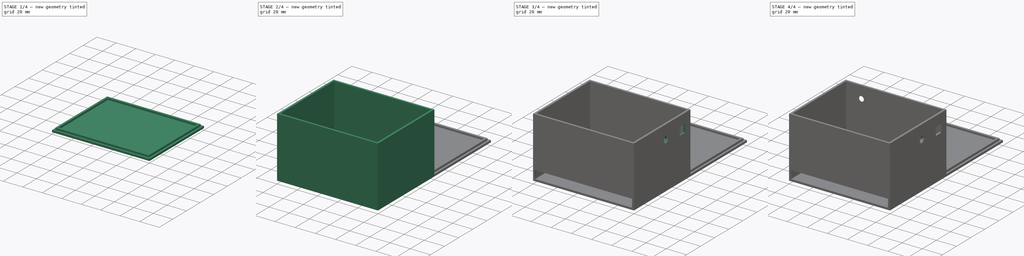
[diagram: build sequence overview — one tinted view per stage of 4, left to right]
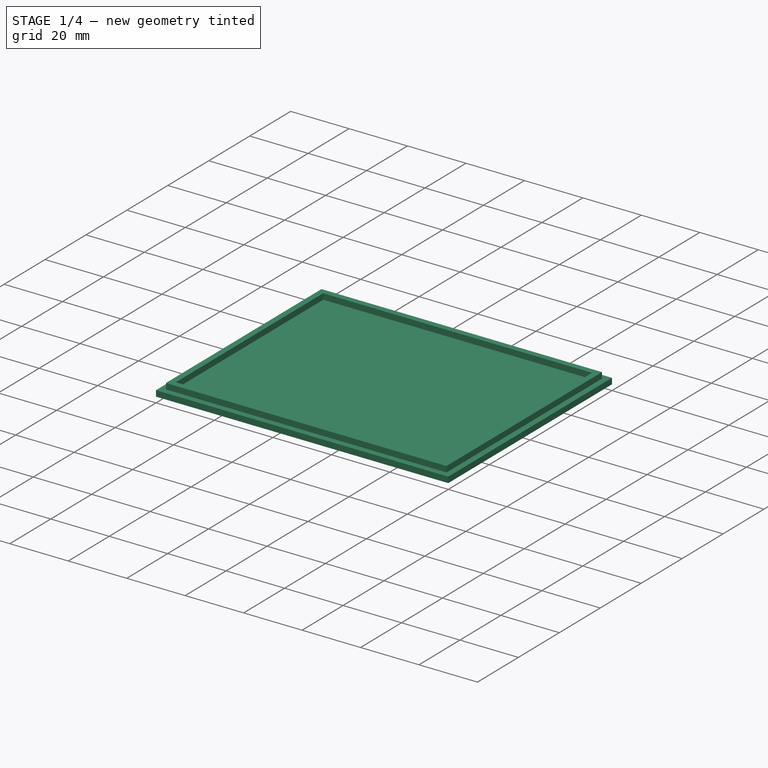
[diagram: stage 1 of 4 — iso view after this stage's code; geometry added in this stage tinted green]
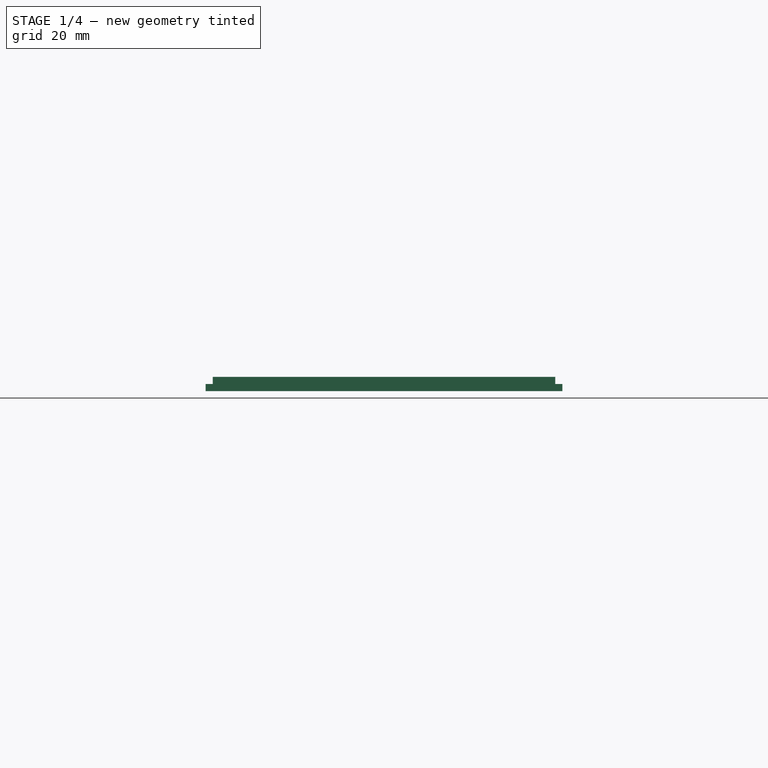
[diagram: stage 1 of 4 — front view after this stage's code; geometry added in this stage tinted green]
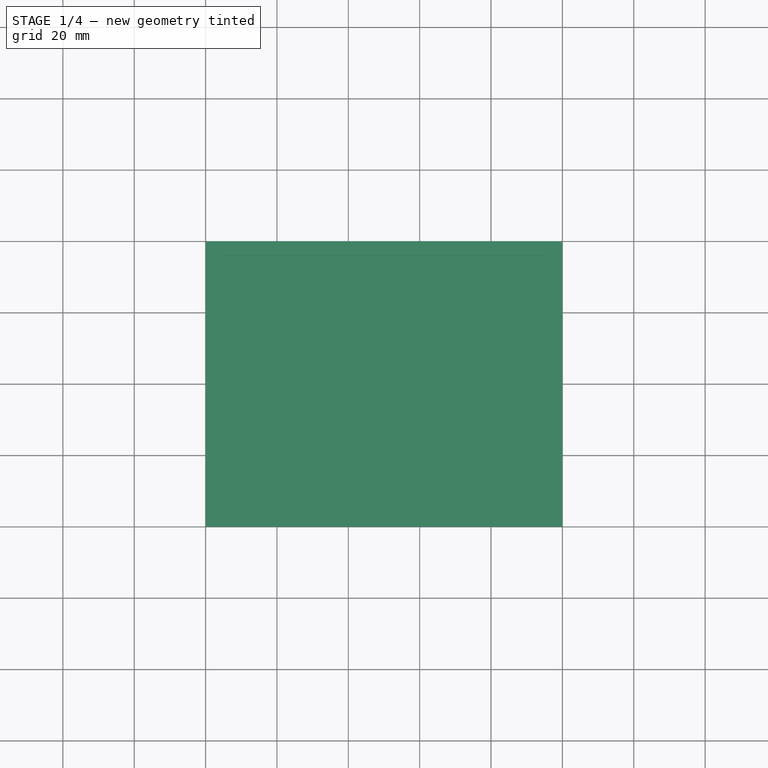
[diagram: stage 1 of 4 — top view after this stage's code; geometry added in this stage tinted green]
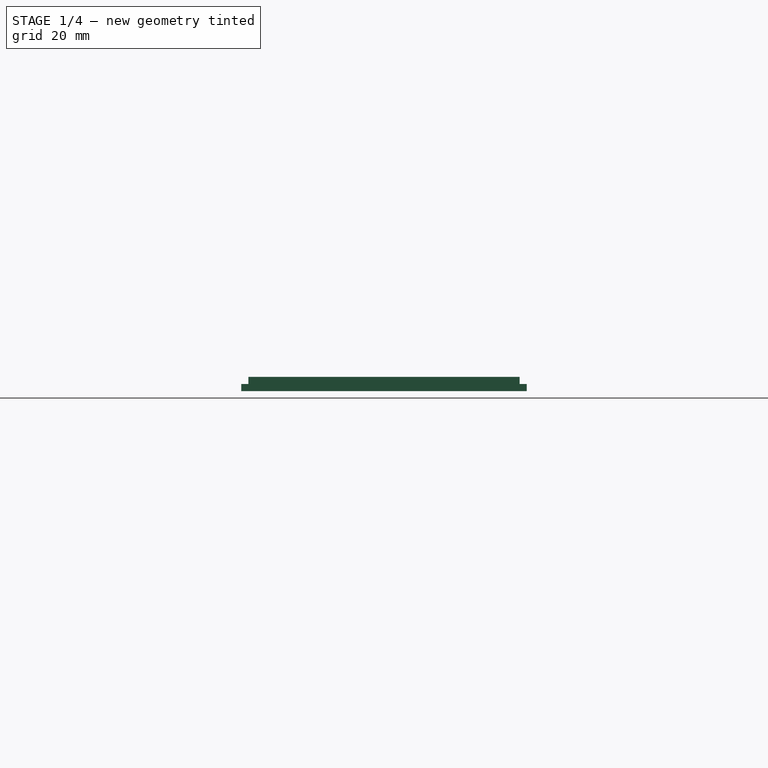
[diagram: stage 1 of 4 — right view after this stage's code; geometry added in this stage tinted green]
FCSTD DOCUMENT  (FreeCAD 1.0R39285 (Git))
Label: box
License: All rights reserved
LicenseURL: https://en.wikipedia.org/wiki/All_rights_reserved
objects: Sketcher::SketchObject×8, PartDesign::Pocket×4, PartDesign::Pad×3, PartDesign::Chamfer×2, PartDesign::Body×2, App::VarSet×1
note: 45 computed .brp shape members not serialized (recipe doc carries the construction recipe); baked Part::Feature solids carry a one-line shape summary decoded from their .brp

FEATURE [PartDesign::Body] Body  label="Box"
  AllowCompound = false
  Group = -> [Sketch,Pad,Sketch001,Pocket,Sketch004,Pocket002,Chamfer,Sketch005,Sketch006,Pocket003,Sketch007,Pocket004,Chamfer001]
  Origin = -> Origin
  Placement = pos=(0,166,0) rot=(0,0,1;0rad)
  Tip = -> Chamfer001
FEATURE [Sketcher::SketchObject] Sketch008
  ArcFitTolerance = 1e-06
  AttachmentSupport = -> [XY_Plane001]
  FullyConstrained = true
  MakeInternals = false
  MapMode = 5
  expr: Constraints[10] = <<VarSet>>.width
  expr: Constraints[11] = <<VarSet>>.length
  sketch-geometry (4):
    g0: LineSegment StartX=0 StartY=80 StartZ=0 EndX=0 EndY=0 EndZ=0
    g1: LineSegment StartX=0 StartY=0 StartZ=0 EndX=100 EndY=0 EndZ=0
    g2: LineSegment StartX=100 StartY=0 StartZ=0 EndX=100 EndY=80 EndZ=0
    g3: LineSegment StartX=100 StartY=80 StartZ=0 EndX=0 EndY=80 EndZ=0
  constraints (12):
    c: Coincident(g0,g1)
    c: Coincident(g1,g2)
    c: Coincident(g2,g3)
    c: Coincident(g3,g0)
    c: Vertical(g0)
    c: Vertical(g2)
    c: Horizontal(g1)
    c: Horizontal(g3)
    c: Horizontal(g0,g-1)
    c: Vertical(g-1,g0)
    c: DistanceY(g0,g0) = 80
    c: DistanceX(g0,g1) = 100
FEATURE [PartDesign::Pad] Pad001
  Direction = (0,0,1)
  Length = 2
  Length2 = 10
  Profile = -> Sketch008
  ReferenceAxis = -> Sketch008 [N_Axis]
  Refine = true
  Suppressed = false
  Type = 0
  expr: Length = <<VarSet>>.wall_thickness
FEATURE [Sketcher::SketchObject] Sketch009
  ArcFitTolerance = 1e-06
  AttachmentSupport = -> [Pad001]
  FullyConstrained = true
  MakeInternals = false
  MapMode = 5
  Placement = pos=(0,0,2) rot=(0,0,1;0rad)
  expr: Constraints[10] = <<VarSet>>.length - <<VarSet>>.wall_thickness
  expr: Constraints[11] = <<VarSet>>.width - <<VarSet>>.wall_thickness
  expr: Constraints[20] = <<VarSet>>.wall_thickness * 2
  expr: Constraints[21] = <<VarSet>>.wall_thickness * 2
  expr: Constraints[22] = <<VarSet>>.length - <<VarSet>>.wall_thickness * 2
  expr: Constraints[23] = <<VarSet>>.width - <<VarSet>>.wall_thickness * 2
  expr: Constraints[8] = <<VarSet>>.wall_thickness
  expr: Constraints[9] = <<VarSet>>.wall_thickness
  sketch-geometry (8):
    g0: LineSegment StartX=2 StartY=78 StartZ=0 EndX=2 EndY=2 EndZ=0
    g1: LineSegment StartX=2 StartY=2 StartZ=0 EndX=98 EndY=2 EndZ=0
    g2: LineSegment StartX=98 StartY=2 StartZ=0 EndX=98 EndY=78 EndZ=0
    g3: LineSegment StartX=98 StartY=78 StartZ=0 EndX=2 EndY=78 EndZ=0
    g4: LineSegment StartX=4 StartY=76 StartZ=0 EndX=4 EndY=4 EndZ=0
    g5: LineSegment StartX=4 StartY=4 StartZ=0 EndX=96 EndY=4 EndZ=0
    g6: LineSegment StartX=96 StartY=4 StartZ=0 EndX=96 EndY=76 EndZ=0
    g7: LineSegment StartX=96 StartY=76 StartZ=0 EndX=4 EndY=76 EndZ=0
  constraints (24):
    c: Coincident(g0,g1)
    c: Coincident(g1,g2)
    c: Coincident(g2,g3)
    c: Coincident(g3,g0)
    c: Vertical(g0)
    c: Vertical(g2)
    c: Horizontal(g1)
    c: Horizontal(g3)
    c: DistanceY(g-1,g0) = 2
    c: DistanceX(g-1,g0) = 2
    c: DistanceX(g-1,g1) = 98
    c: DistanceY(g-1,g0) = 78
    c: Coincident(g4,g5)
    c: Coincident(g5,g6)
    c: Coincident(g6,g7)
    c: Coincident(g7,g4)
    c: Vertical(g4)
    c: Vertical(g6)
    c: Horizontal(g5)
    c: Horizontal(g7)
    c: DistanceY(g-1,g4) = 4
    c: DistanceX(g-1,g4) = 4
    c: DistanceX(g-1,g5) = 96
    c: DistanceY(g-1,g4) = 76
FEATURE [PartDesign::Pad] Pad002
  BaseFeature = -> Pad001
  Direction = (0,0,1)
  Length = 2
  Length2 = 10
  Profile = -> Sketch009
  ReferenceAxis = -> Sketch009 [N_Axis]
  Refine = true
  Suppressed = false
  Type = 0
  expr: Length = <<VarSet>>.wall_thickness
FEATURE [PartDesign::Body] Body001  label="Body"
  AllowCompound = false
  Group = -> [Sketch008,Pad001,Sketch009,Pad002]
  Origin = -> Origin001
  Tip = -> Pad002
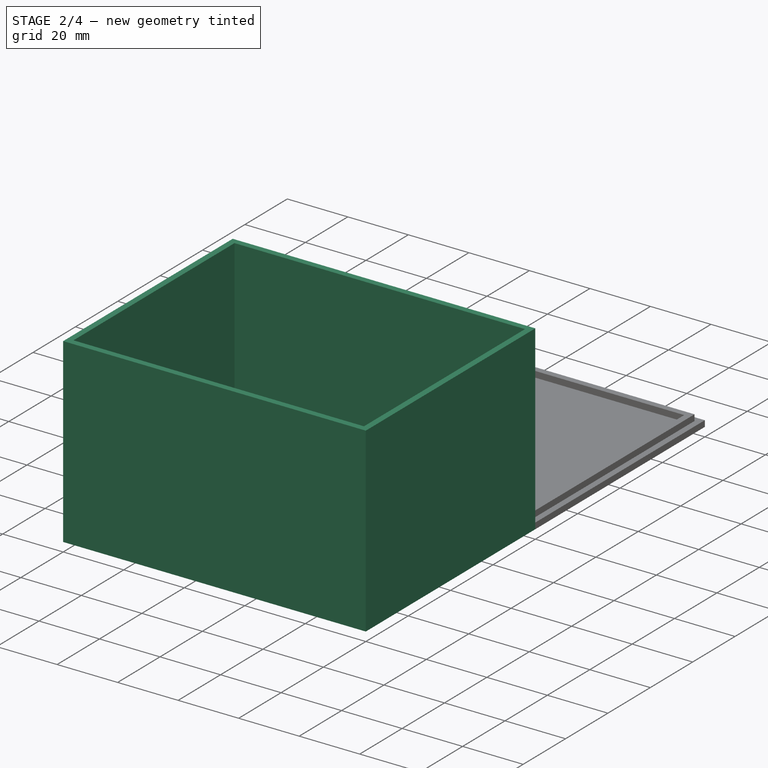
[diagram: stage 2 of 4 — iso view after this stage's code; geometry added in this stage tinted green]
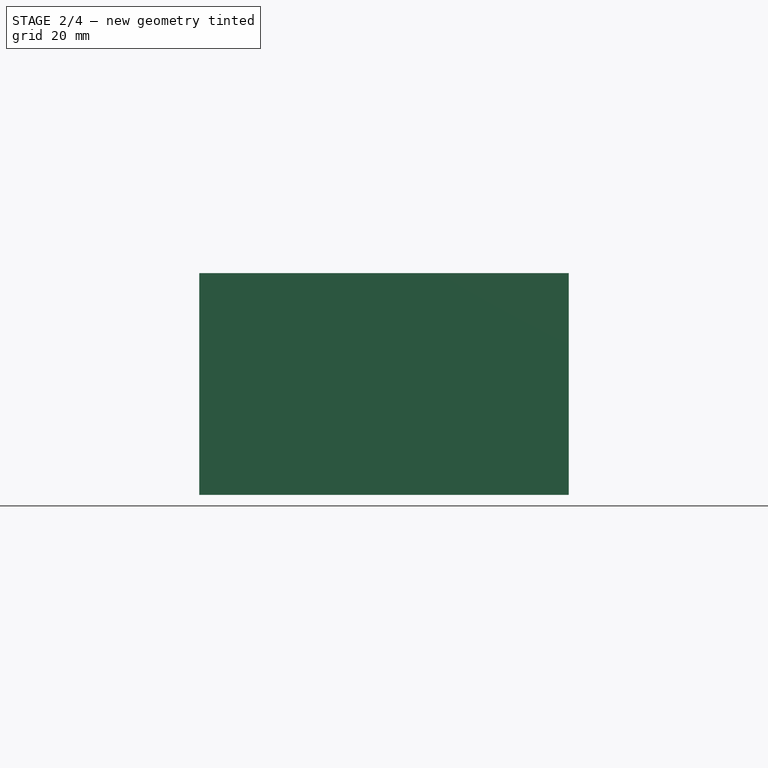
[diagram: stage 2 of 4 — front view after this stage's code; geometry added in this stage tinted green]
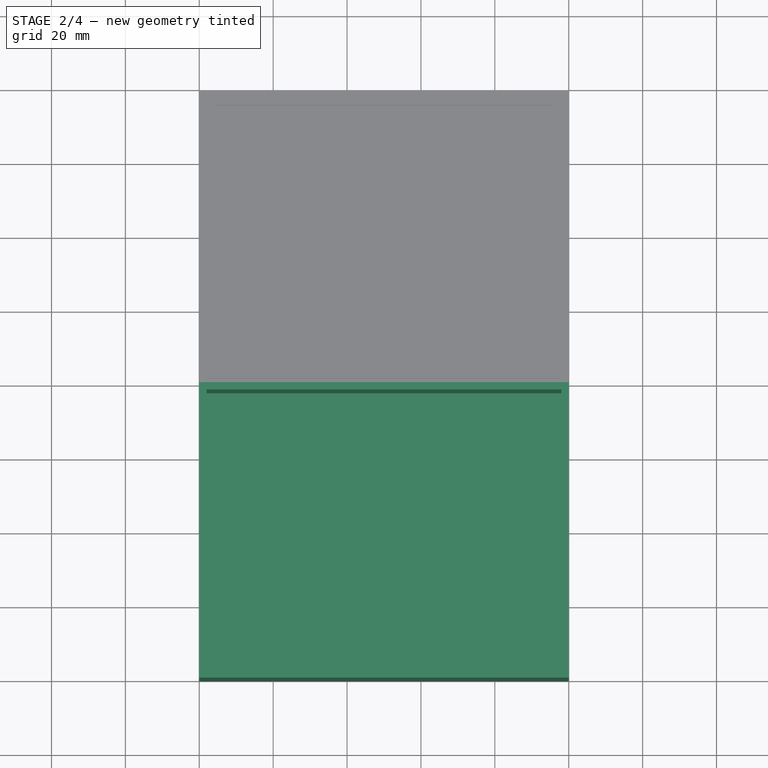
[diagram: stage 2 of 4 — top view after this stage's code; geometry added in this stage tinted green]
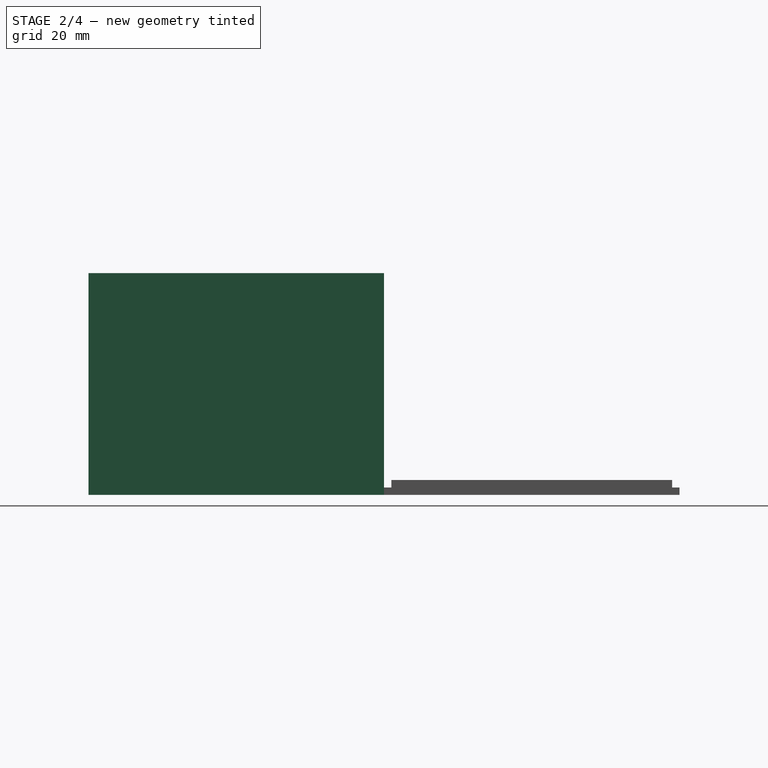
[diagram: stage 2 of 4 — right view after this stage's code; geometry added in this stage tinted green]
FEATURE [App::VarSet] VarSet
  air_sensor_box = 8
  height = 60
  length = 100
  wall_thickness = 2
  width = 80
FEATURE [Sketcher::SketchObject] Sketch
  ArcFitTolerance = 1e-06
  AttachmentSupport = -> [XY_Plane]
  FullyConstrained = true
  MakeInternals = false
  MapMode = 5
  expr: Constraints[10] = <<VarSet>>.length
  expr: Constraints[11] = <<VarSet>>.width
  sketch-geometry (4):
    g0: LineSegment StartX=0 StartY=0 StartZ=0 EndX=0 EndY=-80 EndZ=0
    g1: LineSegment StartX=0 StartY=-80 StartZ=0 EndX=100 EndY=-80 EndZ=0
    g2: LineSegment StartX=100 StartY=-80 StartZ=0 EndX=100 EndY=0 EndZ=0
    g3: LineSegment StartX=100 StartY=0 StartZ=0 EndX=0 EndY=0 EndZ=0
  constraints (12):
    c: Coincident(g0,g1)
    c: Coincident(g1,g2)
    c: Coincident(g2,g3)
    c: Coincident(g3,g0)
    c: Vertical(g0)
    c: Vertical(g2)
    c: Horizontal(g1)
    c: Horizontal(g3)
    c: Horizontal(g0,g-1)
    c: Vertical(g0,g-1)
    c: DistanceX(g0,g2) = 100
    c: DistanceY(g0,g0) = 80
FEATURE [PartDesign::Pad] Pad
  Direction = (0,0,1)
  Length = 60
  Length2 = 10
  Profile = -> Sketch
  ReferenceAxis = -> Sketch [N_Axis]
  Refine = true
  Suppressed = false
  Type = 0
  expr: Length = <<VarSet>>.height
FEATURE [Sketcher::SketchObject] Sketch001
  ArcFitTolerance = 1e-06
  AttachmentSupport = -> [Pad]
  FullyConstrained = true
  MakeInternals = false
  MapMode = 5
  Placement = pos=(0,0,60) rot=(0,0,1;0rad)
  expr: Constraints[10] = <<VarSet>>.length - <<VarSet>>.wall_thickness
  expr: Constraints[11] = <<VarSet>>.width - <<VarSet>>.wall_thickness
  expr: Constraints[8] = VarSet.wall_thickness
  expr: Constraints[9] = <<VarSet>>.wall_thickness
  sketch-geometry (4):
    g0: LineSegment StartX=2 StartY=-2 StartZ=0 EndX=2 EndY=-78 EndZ=0
    g1: LineSegment StartX=2 StartY=-78 StartZ=0 EndX=98 EndY=-78 EndZ=0
    g2: LineSegment StartX=98 StartY=-78 StartZ=0 EndX=98 EndY=-2 EndZ=0
    g3: LineSegment StartX=98 StartY=-2 StartZ=0 EndX=2 EndY=-2 EndZ=0
  constraints (12):
    c: Coincident(g0,g1)
    c: Coincident(g1,g2)
    c: Coincident(g2,g3)
    c: Coincident(g3,g0)
    c: Vertical(g0)
    c: Vertical(g2)
    c: Horizontal(g1)
    c: Horizontal(g3)
    c: DistanceX(g-1,g0) = 2
    c: DistanceY(g0,g-1) = 2
    c: DistanceX(g-1,g1) = 98
    c: DistanceY(g1,g-1) = 78
FEATURE [PartDesign::Pocket] Pocket
  BaseFeature = -> Pad
  Direction = (0,0,-1)
  Length = 58
  Length2 = 5
  Profile = -> Sketch001
  ReferenceAxis = -> Sketch001 [N_Axis]
  Refine = true
  Suppressed = false
  Type = 0
  expr: Length = <<VarSet>>.height - <<VarSet>>.wall_thickness
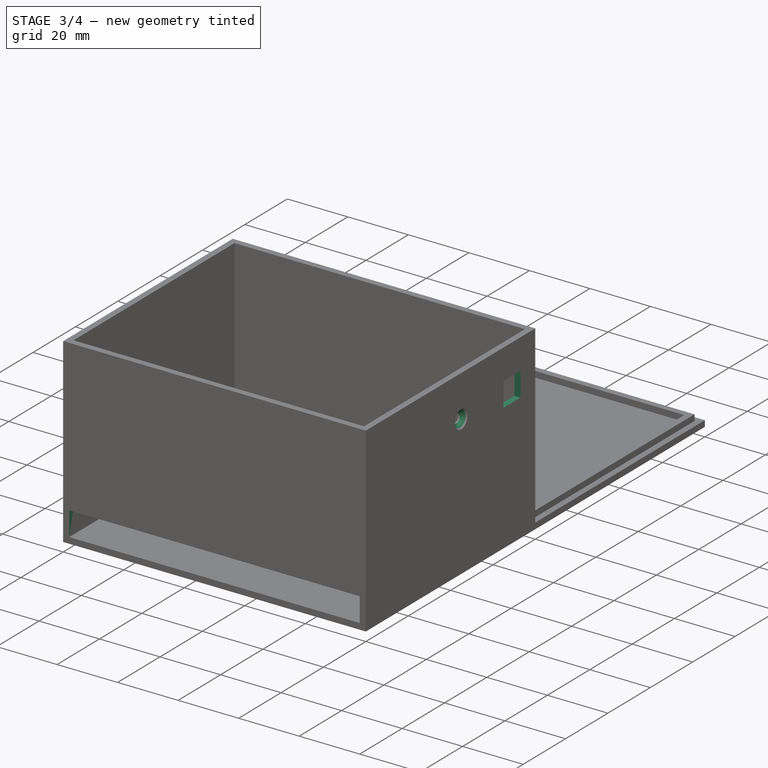
[diagram: stage 3 of 4 — iso view after this stage's code; geometry added in this stage tinted green]
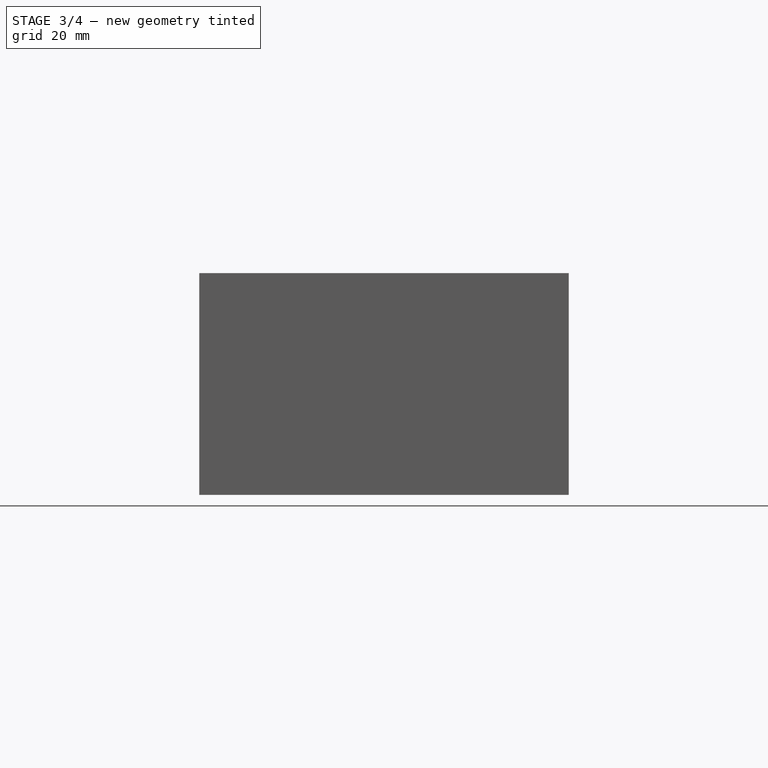
[diagram: stage 3 of 4 — front view after this stage's code; geometry added in this stage tinted green]
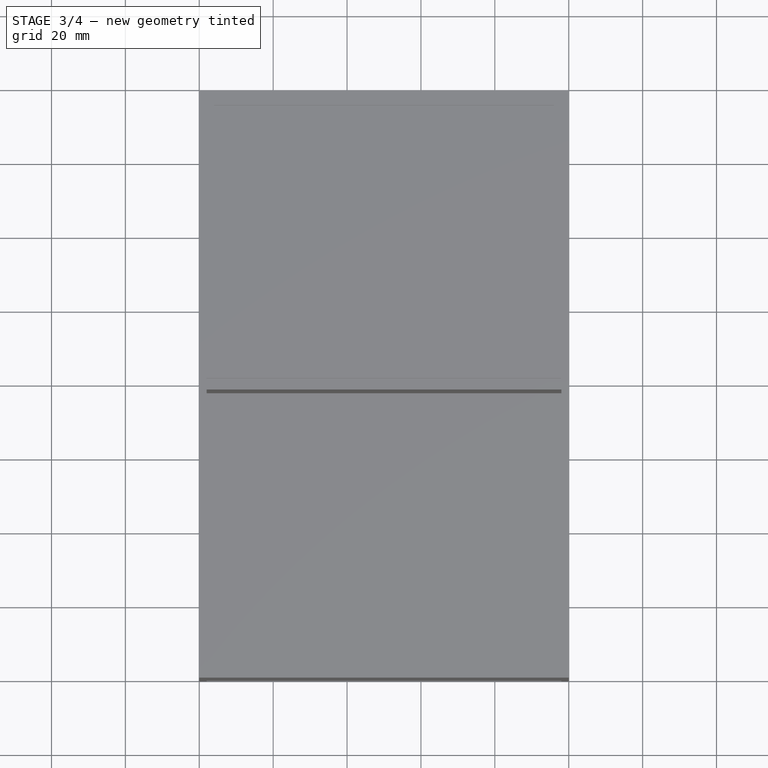
[diagram: stage 3 of 4 — top view after this stage's code; geometry added in this stage tinted green]
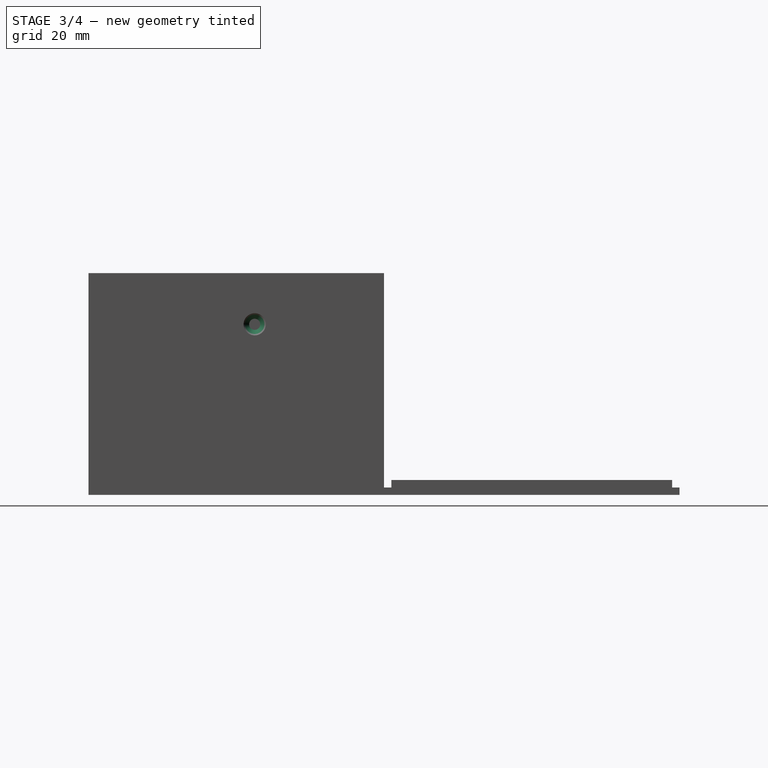
[diagram: stage 3 of 4 — right view after this stage's code; geometry added in this stage tinted green]
FEATURE [Sketcher::SketchObject] Sketch004
  ArcFitTolerance = 1e-06
  FullyConstrained = false
  MakeInternals = false
  MapMode = 5
  Placement = pos=(98,0,0) rot=(0.57735,-0.57735,-0.57735;2.0944rad)
  expr: Constraints[10] = <<VarSet>>.wall_thickness + 5 mm
  expr: Constraints[11] = <<VarSet>>.height - 10 mm - <<VarSet>>.air_sensor_box
  expr: Constraints[8] = VarSet.air_sensor_box
  expr: Constraints[9] = <<VarSet>>.air_sensor_box
  sketch-geometry (5):
    g0: LineSegment StartX=7 StartY=50 StartZ=0 EndX=7 EndY=42 EndZ=0
    g1: LineSegment StartX=7 StartY=42 StartZ=0 EndX=15 EndY=42 EndZ=0
    g2: LineSegment StartX=15 StartY=42 StartZ=0 EndX=15 EndY=50 EndZ=0
    g3: LineSegment StartX=15 StartY=50 StartZ=0 EndX=7 EndY=50 EndZ=0
    g4: Circle CenterX=35 CenterY=46.1654 CenterZ=0 NormalX=0 NormalY=0 NormalZ=1 AngleXU=0 Radius=1.5
  constraints (14):
    c: Coincident(g0,g1)
    c: Coincident(g1,g2)
    c: Coincident(g2,g3)
    c: Coincident(g3,g0)
    c: Vertical(g0)
    c: Vertical(g2)
    c: Horizontal(g1)
    c: Horizontal(g3)
    c: DistanceX(g0,g1) = 8
    c: DistanceY(g0,g0) = 8
    c: DistanceX(g-1,g0) = 7
    c: DistanceY(g-1,g0) = 42
    c: Diameter(g4) = 3
    c: DistanceX(g2,g4) = 20
FEATURE [PartDesign::Pocket] Pocket002
  BaseFeature = -> Pocket
  Direction = (1,0,0)
  Length = 2
  Length2 = 5
  Profile = -> Sketch004
  ReferenceAxis = -> Sketch004 [N_Axis]
  Refine = true
  Suppressed = false
  Type = 0
  expr: Length = <<VarSet>>.wall_thickness
FEATURE [PartDesign::Chamfer] Chamfer
  Angle = 45
  Base = -> Pocket002 [Edge17]
  BaseFeature = -> Pocket002
  ChamferType = 0
  FlipDirection = false
  Refine = true
  Size = 1.5
  Size2 = 1
  SupportTransform = false
  Suppressed = false
  UseAllEdges = false
  expr: Size = <<VarSet>>.wall_thickness - 0.5 mm
FEATURE [Sketcher::SketchObject] Sketch005
  ArcFitTolerance = 1e-06
  AttachmentSupport = -> [Chamfer]
  FullyConstrained = true
  MakeInternals = false
  MapMode = 5
  Placement = pos=(0,0,2) rot=(0,0,1;0rad)
  expr: Constraints[10] = <<VarSet>>.length - <<VarSet>>.wall_thickness - 26 mm
  expr: Constraints[30] = <<VarSet>>.width - <<VarSet>>.wall_thickness
  expr: Constraints[31] = <<VarSet>>.width - <<VarSet>>.wall_thickness
  expr: Constraints[32] = <<VarSet>>.width - <<VarSet>>.wall_thickness
  expr: Constraints[33] = <<VarSet>>.length - <<VarSet>>.wall_thickness - 52 mm
  sketch-geometry (12):
    g0: LineSegment StartX=72 StartY=-43 StartZ=0 EndX=46 EndY=-43 EndZ=0
    g1: LineSegment StartX=46 StartY=-43 StartZ=0 EndX=46 EndY=-78 EndZ=0
    g2: LineSegment StartX=46 StartY=-78 StartZ=0 EndX=72 EndY=-78 EndZ=0
    g3: LineSegment StartX=72 StartY=-78 StartZ=0 EndX=72 EndY=-43 EndZ=0
    g4: LineSegment StartX=98 StartY=-43 StartZ=0 EndX=72 EndY=-43 EndZ=0
    g5: LineSegment StartX=72 StartY=-43 StartZ=0 EndX=72 EndY=-78 EndZ=0
    g6: LineSegment StartX=72 StartY=-78 StartZ=0 EndX=98 EndY=-78 EndZ=0
    g7: LineSegment StartX=98 StartY=-78 StartZ=0 EndX=98 EndY=-43 EndZ=0
    g8: LineSegment StartX=14 StartY=-26 StartZ=0 EndX=14 EndY=-78 EndZ=0
    g9: LineSegment StartX=14 StartY=-78 StartZ=0 EndX=46 EndY=-78 EndZ=0
    g10: LineSegment StartX=46 StartY=-78 StartZ=0 EndX=46 EndY=-26 EndZ=0
    g11: LineSegment StartX=46 StartY=-26 StartZ=0 EndX=14 EndY=-26 EndZ=0
  constraints (36):
    c: Coincident(g0,g1)
    c: Coincident(g1,g2)
    c: Coincident(g2,g3)
    c: Coincident(g3,g0)
    c: Horizontal(g0)
    c: Horizontal(g2)
    c: Vertical(g1)
    c: Vertical(g3)
    c: DistanceX(g0,g0) = 26
    c: DistanceY(g1,g0) = 35
    c: DistanceX(g-1,g0) = 72
    c: Coincident(g4,g5)
    c: Coincident(g5,g6)
    c: Coincident(g6,g7)
    c: Coincident(g7,g4)
    c: Horizontal(g4)
    c: Horizontal(g6)
    c: Vertical(g5)
    c: Vertical(g7)
    c: DistanceX(g4,g4) = 26
    c: DistanceY(g5,g4) = 35
    c: DistanceX(g-1,g4) = 98
    c: Coincident(g8,g9)
    c: Coincident(g9,g10)
    c: Coincident(g10,g11)
    c: Coincident(g11,g8)
    c: Vertical(g8)
    c: Vertical(g10)
    c: Horizontal(g9)
    c: Horizontal(g11)
    c: DistanceY(g6,g-1) = 78
    c: DistanceY(g2,g-1) = 78
    c: DistanceY(g9,g-1) = 78
    c: DistanceX(g-1,g9) = 46
    c: DistanceY(g8,g8) = 52
    c: DistanceX(g8,g10) = 32
FEATURE [Sketcher::SketchObject] Sketch006
  ArcFitTolerance = 1e-06
  AttachmentSupport = -> [Chamfer]
  FullyConstrained = true
  MakeInternals = false
  MapMode = 5
  Placement = pos=(0,-78,0) rot=(0,0.707107,0.707107;3.14159rad)
  expr: Constraints[10] = <<VarSet>>.length - <<VarSet>>.wall_thickness * 2
  expr: Constraints[8] = <<VarSet>>.wall_thickness
  expr: Constraints[9] = <<VarSet>>.wall_thickness
  sketch-geometry (4):
    g0: LineSegment StartX=-98 StartY=10 StartZ=0 EndX=-98 EndY=2 EndZ=0
    g1: LineSegment StartX=-98 StartY=2 StartZ=0 EndX=-2 EndY=2 EndZ=0
    g2: LineSegment StartX=-2 StartY=2 StartZ=0 EndX=-2 EndY=10 EndZ=0
    g3: LineSegment StartX=-2 StartY=10 StartZ=0 EndX=-98 EndY=10 EndZ=0
  constraints (12):
    c: Coincident(g0,g1)
    c: Coincident(g1,g2)
    c: Coincident(g2,g3)
    c: Coincident(g3,g0)
    c: Vertical(g0)
    c: Vertical(g2)
    c: Horizontal(g1)
    c: Horizontal(g3)
    c: DistanceX(g1,g-1) = 2
    c: DistanceY(g-1,g1) = 2
    c: DistanceX(g0,g2) = 96
    c: DistanceY(g1,g2) = 8
FEATURE [PartDesign::Pocket] Pocket003
  BaseFeature = -> Chamfer
  Direction = (0,-1,2e-16)
  Length = 2
  Length2 = 5
  Profile = -> Sketch006
  ReferenceAxis = -> Sketch006 [N_Axis]
  Refine = true
  Suppressed = false
  Type = 0
  expr: Length = <<VarSet>>.wall_thickness
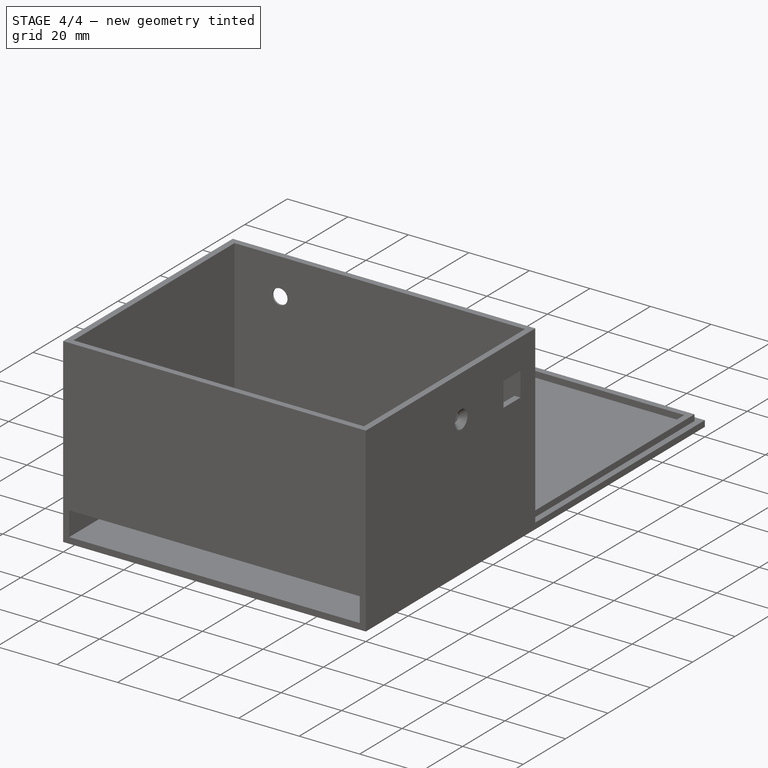
[diagram: stage 4 of 4 — iso view after this stage's code; geometry added in this stage tinted green]
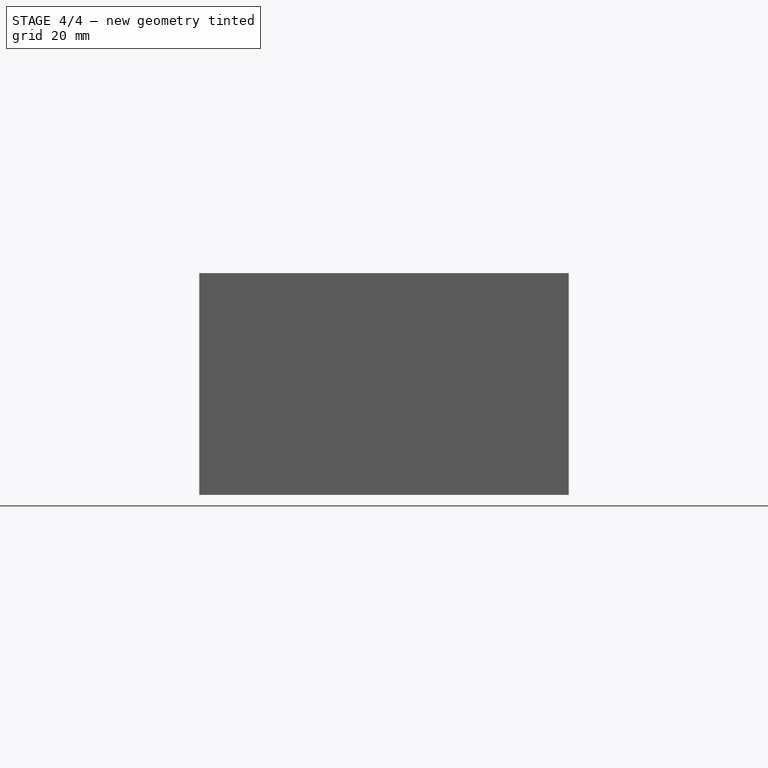
[diagram: stage 4 of 4 — front view after this stage's code; geometry added in this stage tinted green]
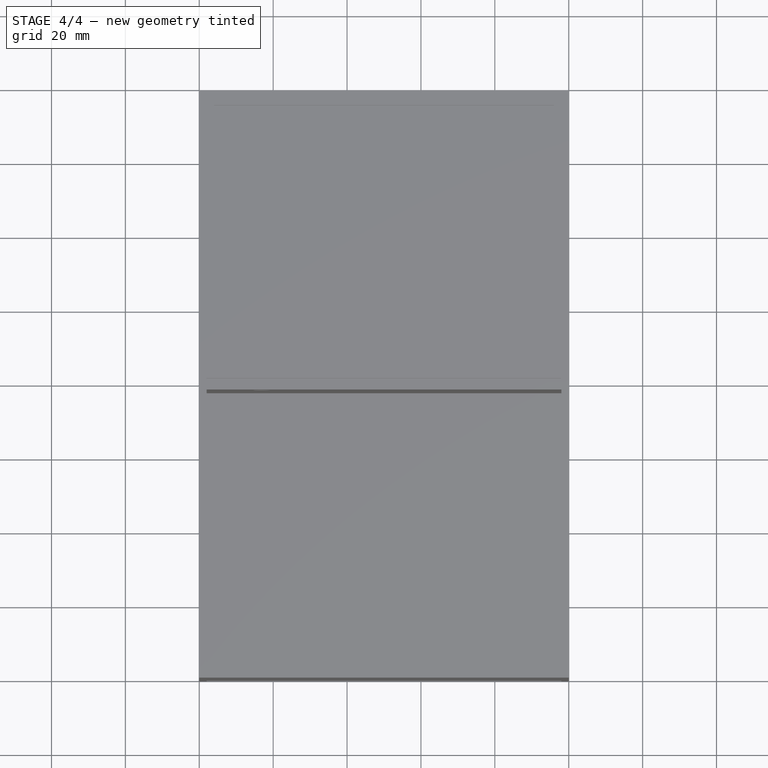
[diagram: stage 4 of 4 — top view after this stage's code; geometry added in this stage tinted green]
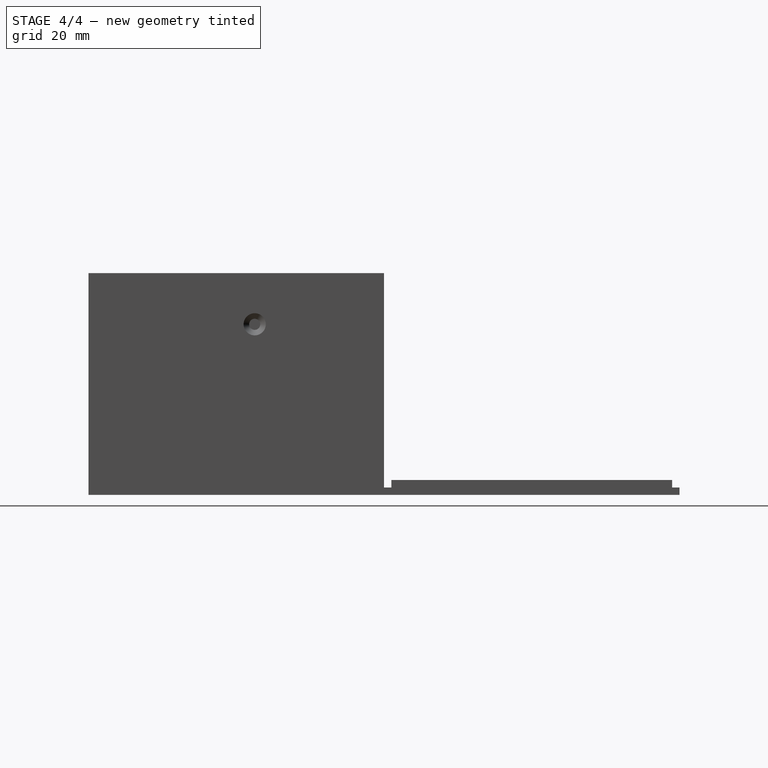
[diagram: stage 4 of 4 — right view after this stage's code; geometry added in this stage tinted green]
FEATURE [Sketcher::SketchObject] Sketch007
  ArcFitTolerance = 1e-06
  AttachmentSupport = -> [Pocket003]
  FullyConstrained = true
  MakeInternals = false
  MapMode = 5
  Placement = pos=(0,-2,0) rot=(1,0,0;1.5708rad)
  expr: Constraints[1] = <<VarSet>>.wall_thickness + 15 mm
  expr: Constraints[2] = <<VarSet>>.height - <<VarSet>>.wall_thickness - 10 mm
  sketch-geometry (1):
    g0: Circle CenterX=17 CenterY=48 CenterZ=0 NormalX=0 NormalY=0 NormalZ=1 AngleXU=0 Radius=2.5
  constraints (3):
    c: Diameter(g0) = 5
    c: DistanceX(g-1,g0) = 17
    c: DistanceY(g-1,g0) = 48
FEATURE [PartDesign::Pocket] Pocket004
  BaseFeature = -> Pocket003
  Direction = (0,1,-2e-16)
  Length = 2
  Length2 = 5
  Profile = -> Sketch007
  ReferenceAxis = -> Sketch007 [N_Axis]
  Refine = true
  Suppressed = false
  Type = 0
  expr: Length = <<VarSet>>.wall_thickness
FEATURE [PartDesign::Chamfer] Chamfer001
  Angle = 45
  Base = -> Pocket004 [Edge28]
  BaseFeature = -> Pocket004
  ChamferType = 0
  FlipDirection = false
  Refine = true
  Size = 1.5
  Size2 = 1
  SupportTransform = false
  Suppressed = false
  UseAllEdges = false
  expr: Size = <<VarSet>>.wall_thickness - 0.5 mm
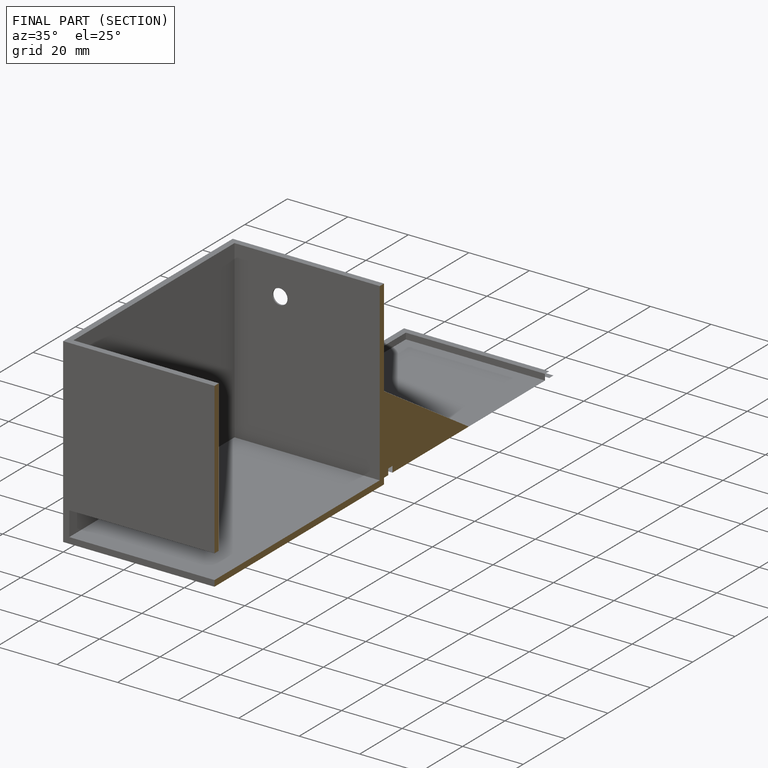
[diagram: finished part — half-section view (interior)]
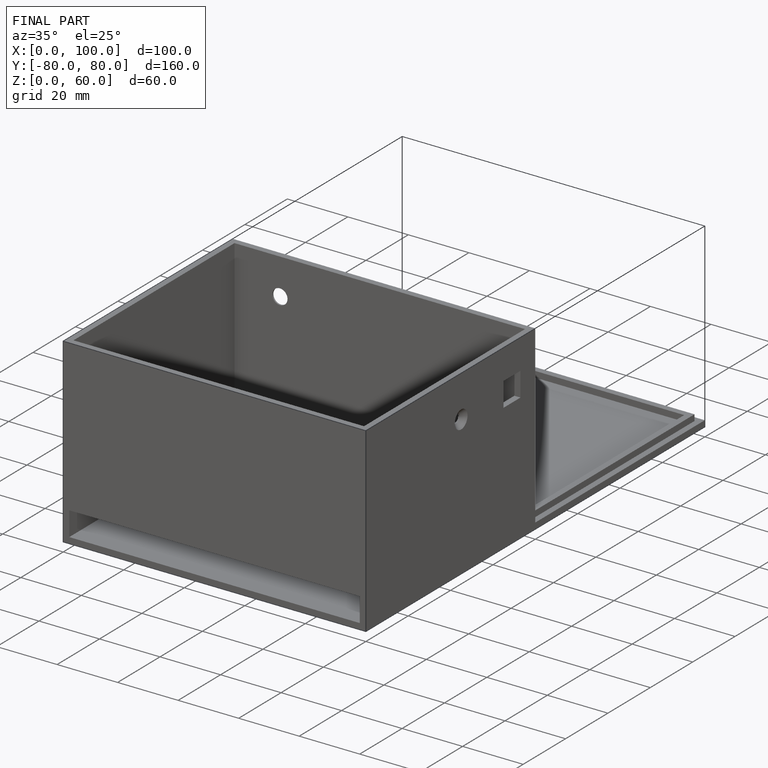
[diagram: finished part — iso view with bounding-box wireframe]
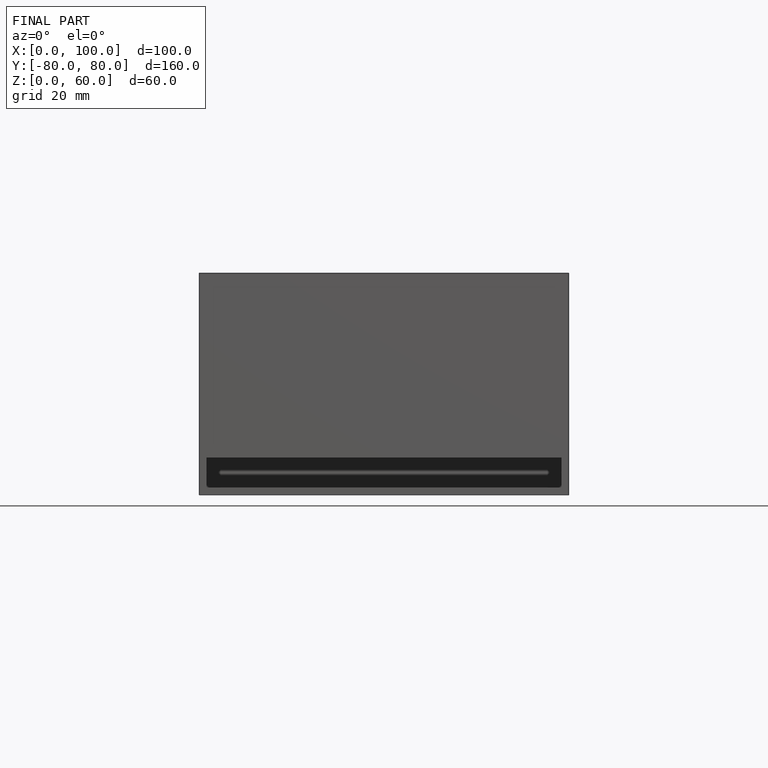
[diagram: finished part — front view with bounding-box wireframe]
